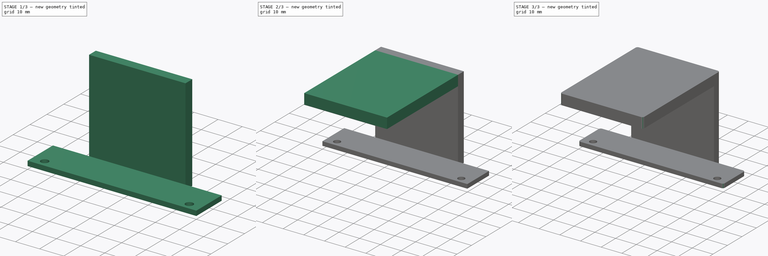
[diagram: build sequence overview — one tinted view per stage of 3, left to right]
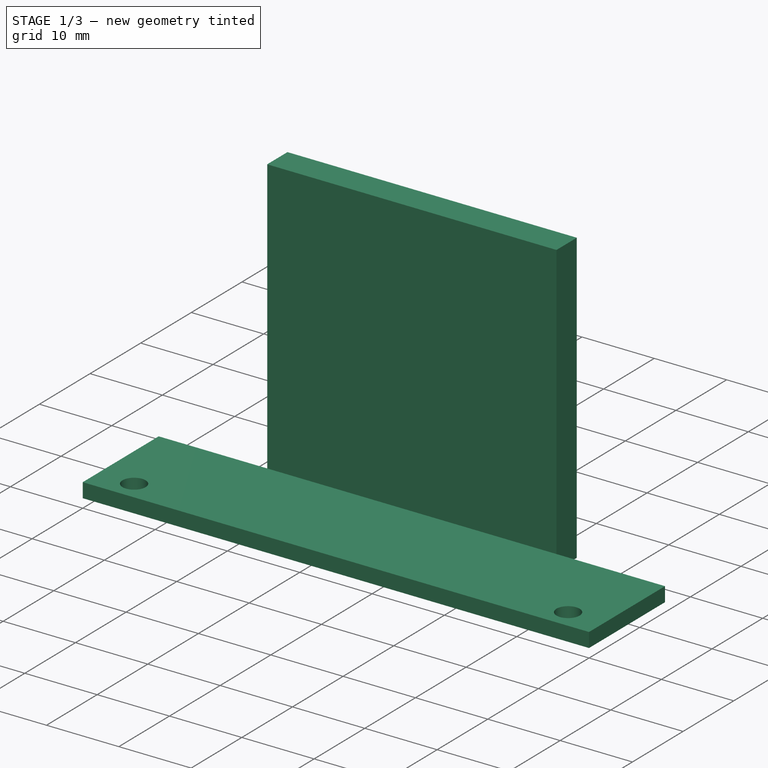
[diagram: stage 1 of 3 — iso view after this stage's code; geometry added in this stage tinted green]
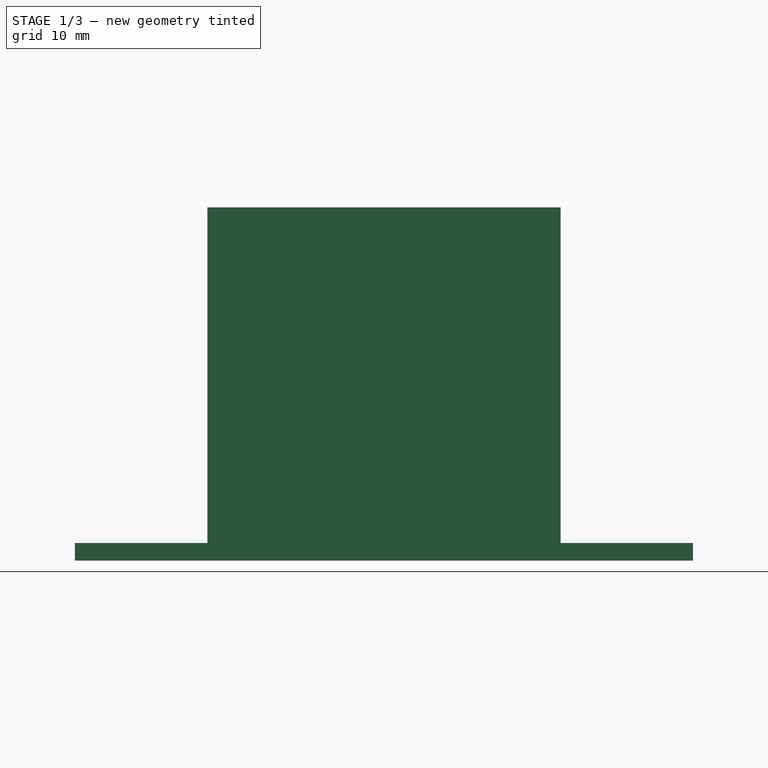
[diagram: stage 1 of 3 — front view after this stage's code; geometry added in this stage tinted green]
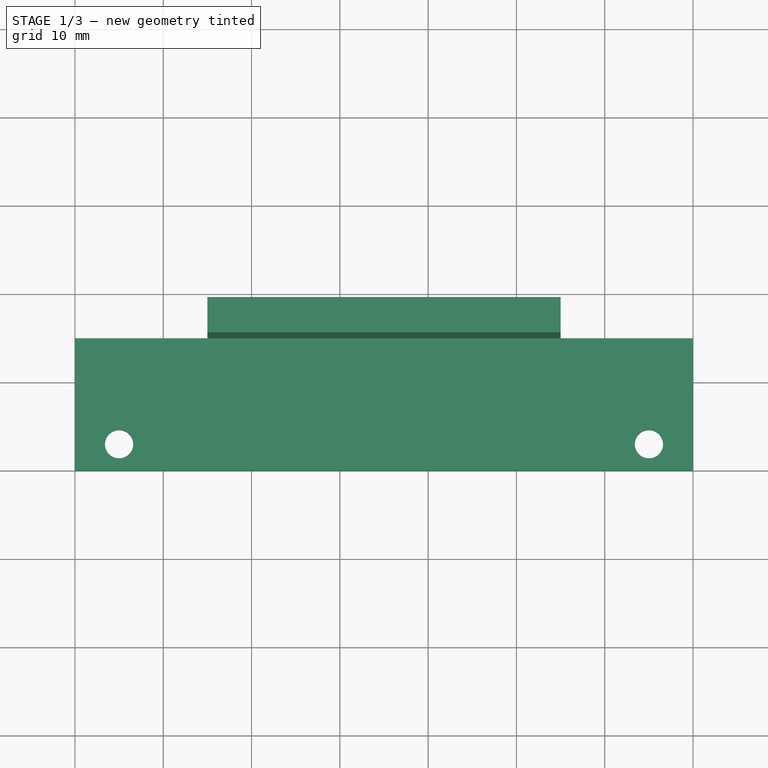
[diagram: stage 1 of 3 — top view after this stage's code; geometry added in this stage tinted green]
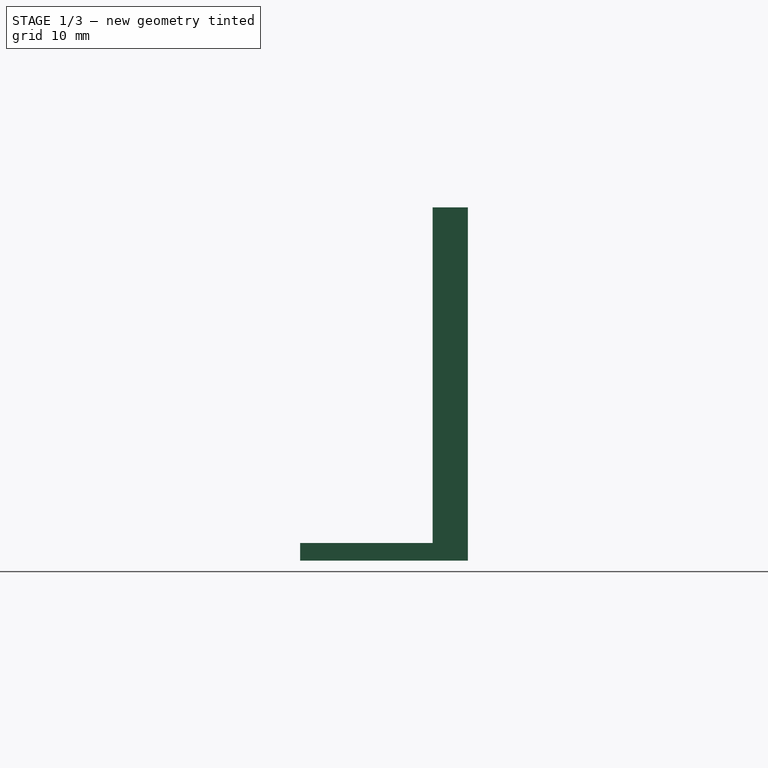
[diagram: stage 1 of 3 — right view after this stage's code; geometry added in this stage tinted green]
FCSTD DOCUMENT  (FreeCAD 0.19R24291 (Git))
Label: LED Mount Bottom Mount 2
License: All rights reserved
LicenseURL: http://en.wikipedia.org/wiki/All_rights_reserved
objects: Sketcher::SketchObject×6, PartDesign::Pad×3, PartDesign::Pocket×3, PartDesign::Fillet×1, PartDesign::Body×1
note: 21 computed .brp shape members not serialized (recipe doc carries the construction recipe); baked Part::Feature solids carry a one-line shape summary decoded from their .brp

FEATURE [Sketcher::SketchObject] Sketch
  FullyConstrained = true
  MapMode = 5
  Support = -> [XY_Plane]
  sketch-geometry (7):
    g0: LineSegment StartX=0 StartY=0 StartZ=0 EndX=70 EndY=0 EndZ=0
    g1: LineSegment StartX=70 StartY=0 StartZ=0 EndX=70 EndY=15 EndZ=0
    g2: LineSegment StartX=70 StartY=15 StartZ=0 EndX=0 EndY=15 EndZ=0
    g3: LineSegment StartX=0 StartY=15 StartZ=0 EndX=0 EndY=0 EndZ=0
    g4: Circle CenterX=5 CenterY=3 CenterZ=0 NormalX=0 NormalY=0 NormalZ=1 AngleXU=0 Radius=1.6
    g5: Circle CenterX=65 CenterY=3 CenterZ=0 NormalX=0 NormalY=0 NormalZ=1 AngleXU=0 Radius=1.6
    g6: LineSegment StartX=5 StartY=3 StartZ=0 EndX=65 EndY=3 EndZ=0
  constraints (19):
    c: Coincident(g0,g1)
    c: Coincident(g1,g2)
    c: Coincident(g2,g3)
    c: Coincident(g3,g0)
    c: Horizontal(g0)
    c: Horizontal(g2)
    c: Vertical(g1)
    c: Vertical(g3)
    c: Coincident(g0,g-1)
    c: DistanceX(g2,g2) = 70
    c: DistanceY(g1,g1) = 15
    c: Diameter(g4) = 3.2
    c: Equal(g4,g5)
    c: Coincident(g6,g4)
    c: Coincident(g6,g5)
    c: Horizontal(g6)
    c: DistanceX(g6,g6) = 60
    c: DistanceX(g2,g4) = 5
    c: DistanceY(g0,g4) = 3
FEATURE [PartDesign::Pad] Pad  label="Base Mount"
  Direction = (1,1,1)
  Length = 2
  Length2 = 100
  Profile = -> Sketch
  Type = 0
FEATURE [Sketcher::SketchObject] Sketch001
  ExternalGeometry = -> [Pad]
  FullyConstrained = true
  MapMode = 5
  Placement = pos=(0,15,0) rot=(0,0.707107,0.707107;3.14159rad)
  Support = -> [Pad]
  sketch-geometry (4):
    g0: LineSegment StartX=-55 StartY=0 StartZ=0 EndX=-15 EndY=0 EndZ=0
    g1: LineSegment StartX=-15 StartY=0 StartZ=0 EndX=-15 EndY=40 EndZ=0
    g2: LineSegment StartX=-15 StartY=40 StartZ=0 EndX=-55 EndY=40 EndZ=0
    g3: LineSegment StartX=-55 StartY=40 StartZ=0 EndX=-55 EndY=0 EndZ=0
  constraints (12):
    c: Coincident(g0,g1)
    c: Coincident(g1,g2)
    c: Coincident(g2,g3)
    c: Coincident(g3,g0)
    c: Horizontal(g0)
    c: Horizontal(g2)
    c: Vertical(g1)
    c: Vertical(g3)
    c: PointOnObject(g0,g-1)
    c: DistanceX(g2,g2) = 40
    c: DistanceX(g0,g-1) = 15
    c: DistanceY(g1,g1) = 40
FEATURE [PartDesign::Pad] Pad001  label="Wall"
  BaseFeature = -> Pad
  Direction = (1,1,1)
  Length = 4
  Length2 = 100
  Profile = -> Sketch001
  Type = 0
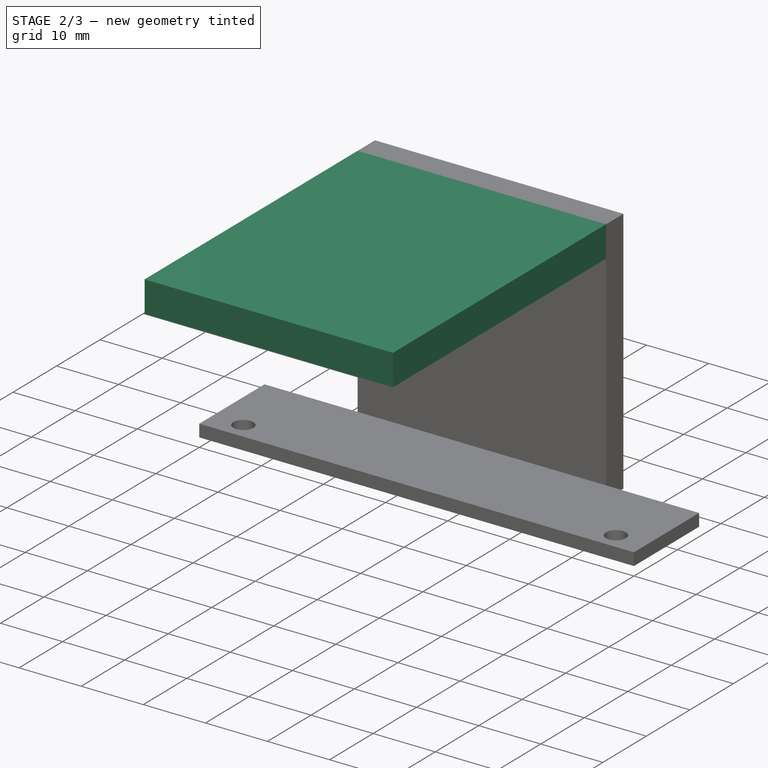
[diagram: stage 2 of 3 — iso view after this stage's code; geometry added in this stage tinted green]
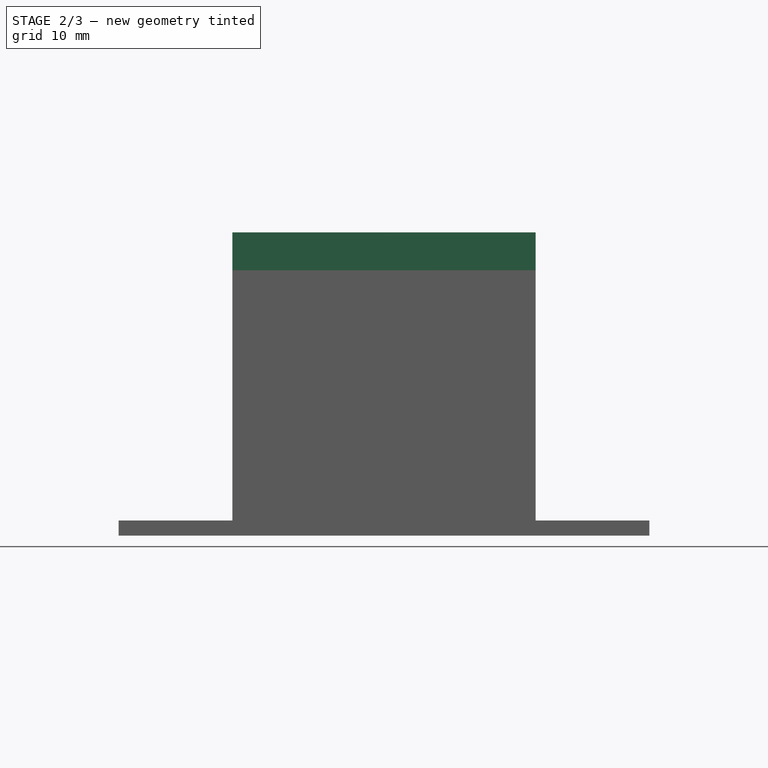
[diagram: stage 2 of 3 — front view after this stage's code; geometry added in this stage tinted green]
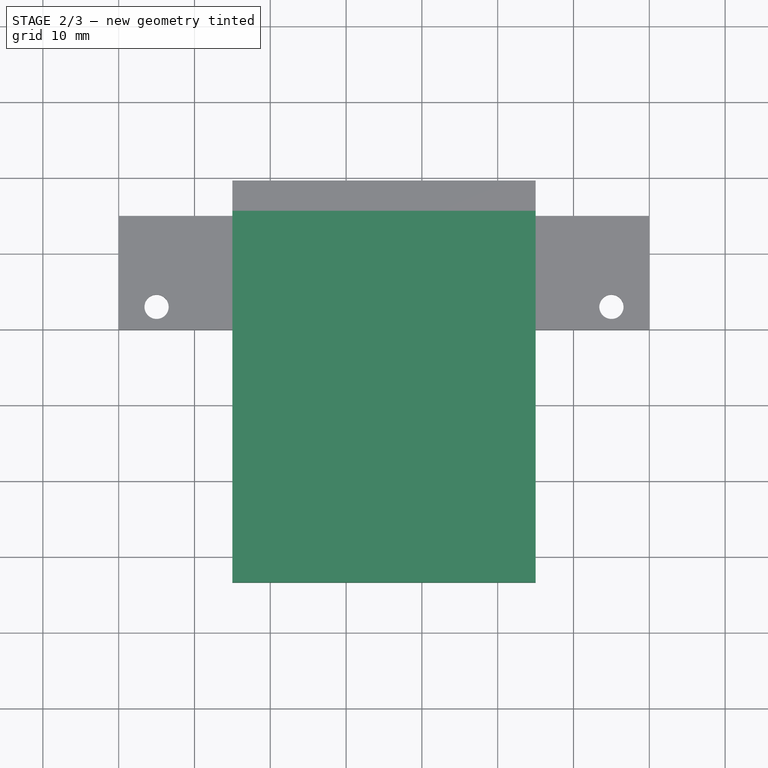
[diagram: stage 2 of 3 — top view after this stage's code; geometry added in this stage tinted green]
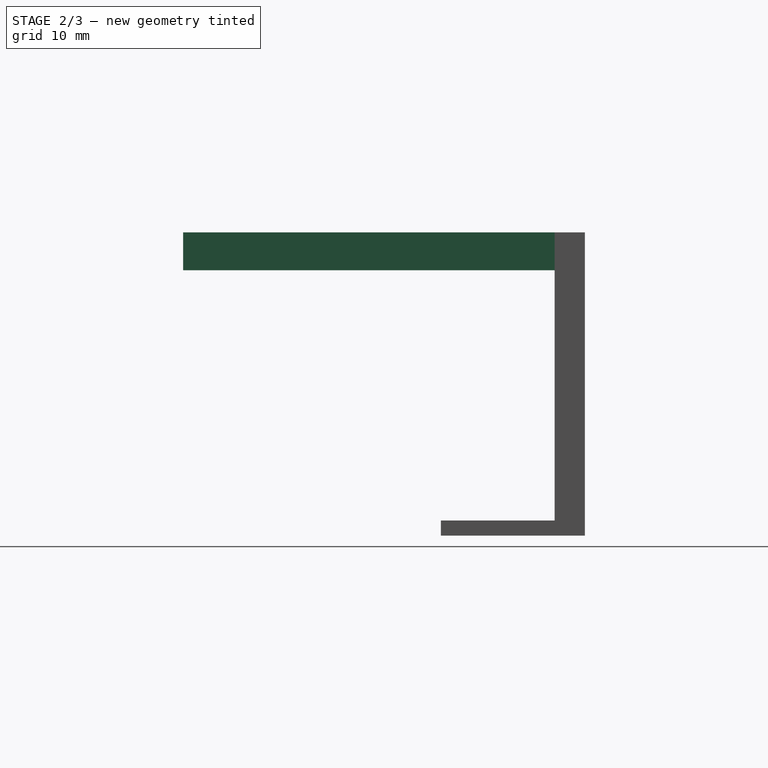
[diagram: stage 2 of 3 — right view after this stage's code; geometry added in this stage tinted green]
FEATURE [Sketcher::SketchObject] Sketch002
  ExternalGeometry = -> [Pad001]
  FullyConstrained = true
  MapMode = 5
  Placement = pos=(0,8.9e-15,40) rot=(0,0,1;0rad)
  Support = -> [Pad001]
  sketch-geometry (4):
    g0: LineSegment StartX=15 StartY=15 StartZ=0 EndX=55 EndY=15 EndZ=0
    g1: LineSegment StartX=55 StartY=15 StartZ=0 EndX=55 EndY=-34 EndZ=0
    g2: LineSegment StartX=55 StartY=-34 StartZ=0 EndX=15 EndY=-34 EndZ=0
    g3: LineSegment StartX=15 StartY=-34 StartZ=0 EndX=15 EndY=15 EndZ=0
  constraints (10):
    c: Coincident(g0,g1)
    c: Coincident(g1,g2)
    c: Coincident(g2,g3)
    c: Coincident(g3,g0)
    c: Horizontal(g2)
    c: Vertical(g1)
    c: Vertical(g3)
    c: Coincident(g0,g-3)
    c: Coincident(g0,g-3)
    c: DistanceY(g3,g3) = 49
FEATURE [PartDesign::Pad] Pad002  label="Top"
  BaseFeature = -> Pad001
  Direction = (1,1,1)
  Length = 5
  Length2 = 100
  Profile = -> Sketch002
  Reversed = true
  Type = 0
FEATURE [Sketcher::SketchObject] Sketch003
  ExternalGeometry = -> [Pad002]
  FullyConstrained = true
  MapMode = 5
  Placement = pos=(0,5.1e-15,35) rot=(1,0,0;3.14159rad)
  Support = -> [Pad002]
  sketch-geometry (8):
    g0: LineSegment StartX=19.75 StartY=32 StartZ=0 EndX=50.25 EndY=32 EndZ=0
    g1: LineSegment StartX=50.25 StartY=32 StartZ=0 EndX=50.25 EndY=1.5 EndZ=0
    g2: LineSegment StartX=50.25 StartY=1.5 StartZ=0 EndX=19.75 EndY=1.5 EndZ=0
    g3: LineSegment StartX=19.75 StartY=32 StartZ=0 EndX=19.75 EndY=23 EndZ=0
    g4: LineSegment StartX=19.75 StartY=1.5 StartZ=0 EndX=19.75 EndY=10.5 EndZ=0
    g5: LineSegment StartX=19.75 StartY=23 StartZ=0 EndX=15 EndY=23 EndZ=0
    g6: LineSegment StartX=15 StartY=23 StartZ=0 EndX=15 EndY=10.5 EndZ=0
    g7: LineSegment StartX=15 StartY=10.5 StartZ=0 EndX=19.75 EndY=10.5 EndZ=0
  constraints (24):
    c: Coincident(g0,g1)
    c: Coincident(g1,g2)
    c: Horizontal(g0)
    c: Horizontal(g2)
    c: Vertical(g1)
    c: DistanceX(g-4,g0) = 4.75
    c: DistanceX(g0,g0) = 30.5
    c: DistanceY(g0,g-4) = 2
    c: DistanceY(g2,g0) = 30.5
    c: Coincident(g3,g0)
    c: Vertical(g3)
    c: Coincident(g4,g2)
    c: Vertical(g4)
    c: Coincident(g5,g3)
    c: PointOnObject(g5,g-4)
    c: Coincident(g6,g5)
    c: PointOnObject(g6,g-4)
    c: Coincident(g7,g6)
    c: Coincident(g7,g4)
    c: Horizontal(g7)
    c: Horizontal(g5)
    c: DistanceY(g3,g3) = 9
    c: DistanceY(g4,g4) = 9
    c: Equal(g7,g5)
FEATURE [PartDesign::Pocket] Pocket  label="LED Recess"
  BaseFeature = -> Pad002
  Length = 2
  Length2 = 100
  Profile = -> Sketch003
  Type = 0
FEATURE [Sketcher::SketchObject] Sketch004
  ExternalGeometry = -> [Pocket]
  FullyConstrained = true
  MapMode = 5
  Placement = pos=(-2e-15,8.2e-15,37) rot=(1,0,0;3.14159rad)
  Support = -> [Pocket]
  sketch-geometry (4):
    g0: LineSegment StartX=15 StartY=10.5 StartZ=0 EndX=24.75 EndY=10.5 EndZ=0
    g1: LineSegment StartX=24.75 StartY=10.5 StartZ=0 EndX=24.75 EndY=23 EndZ=0
    g2: LineSegment StartX=24.75 StartY=23 StartZ=0 EndX=15 EndY=23 EndZ=0
    g3: LineSegment StartX=15 StartY=23 StartZ=0 EndX=15 EndY=10.5 EndZ=0
  constraints (10):
    c: Coincident(g0,g1)
    c: Coincident(g1,g2)
    c: Coincident(g2,g3)
    c: Coincident(g3,g0)
    c: Horizontal(g0)
    c: Horizontal(g2)
    c: Vertical(g1)
    c: Coincident(g0,g-5)
    c: Coincident(g2,g-5)
    c: DistanceX(g-3,g1) = 5
FEATURE [PartDesign::Pocket] Pocket001  label="Wire Recess"
  BaseFeature = -> Pocket
  Length = 1.5
  Length2 = 100
  Profile = -> Sketch004
  Type = 0
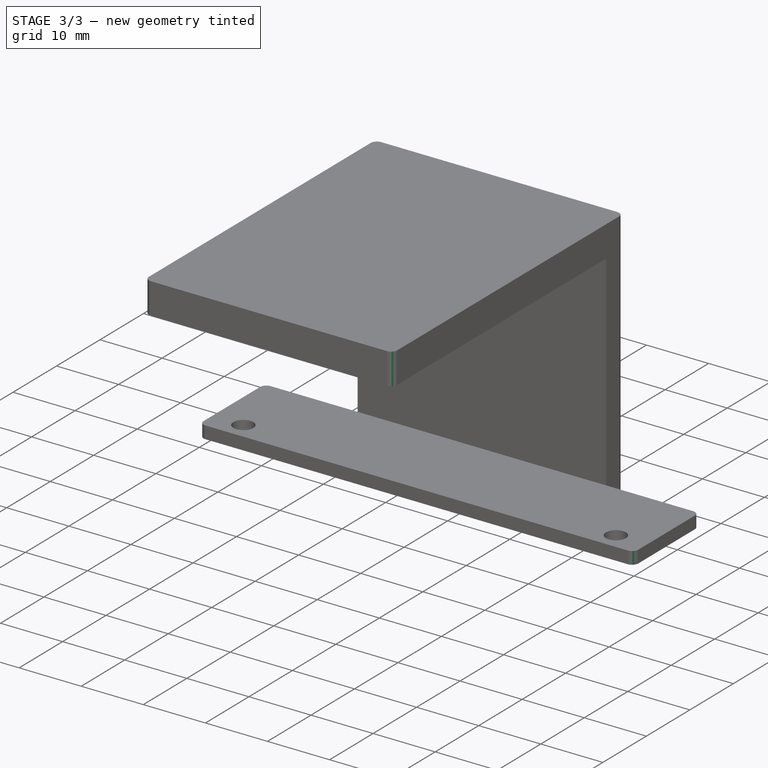
[diagram: stage 3 of 3 — iso view after this stage's code; geometry added in this stage tinted green]
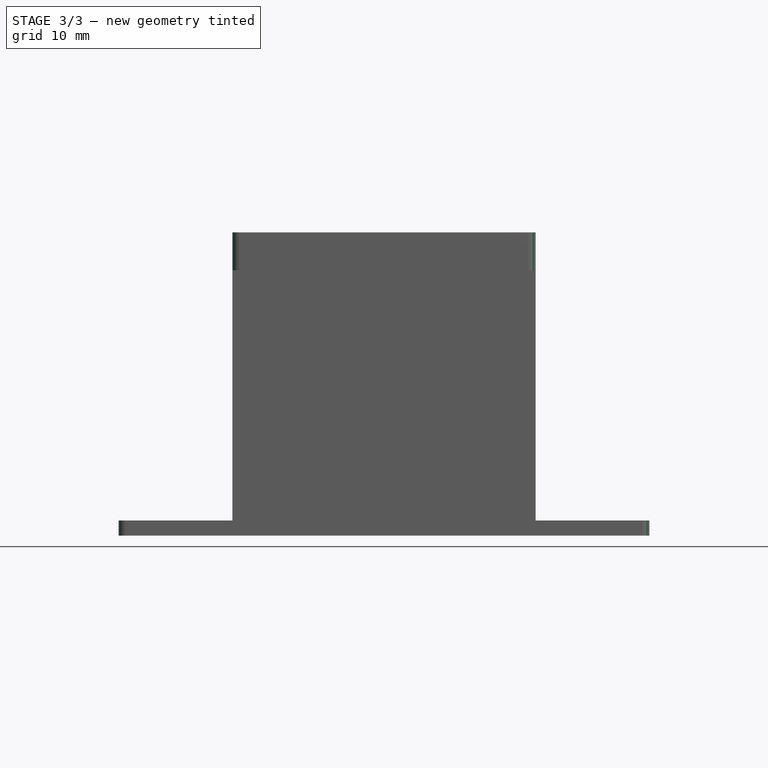
[diagram: stage 3 of 3 — front view after this stage's code; geometry added in this stage tinted green]
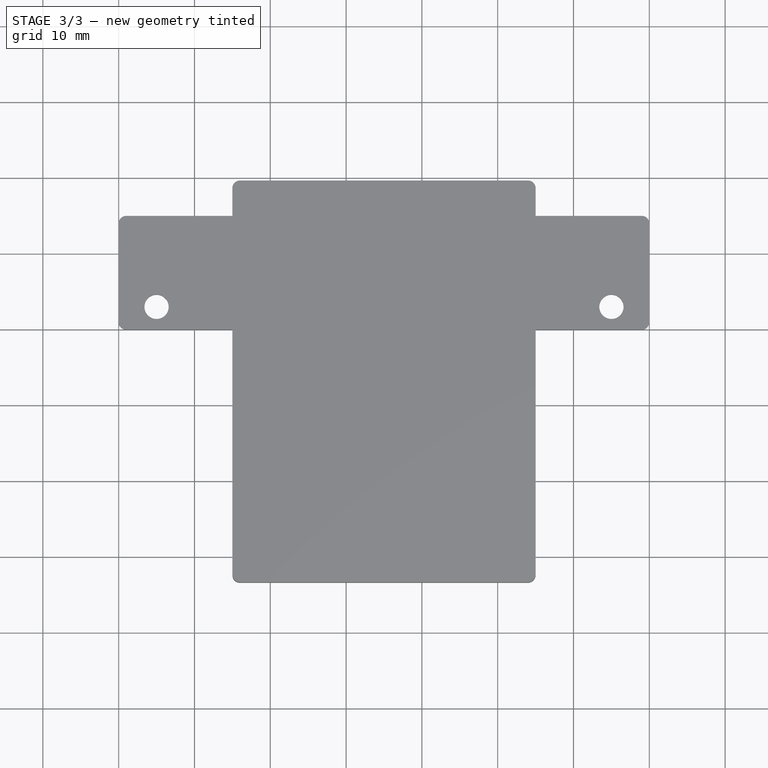
[diagram: stage 3 of 3 — top view after this stage's code; geometry added in this stage tinted green]
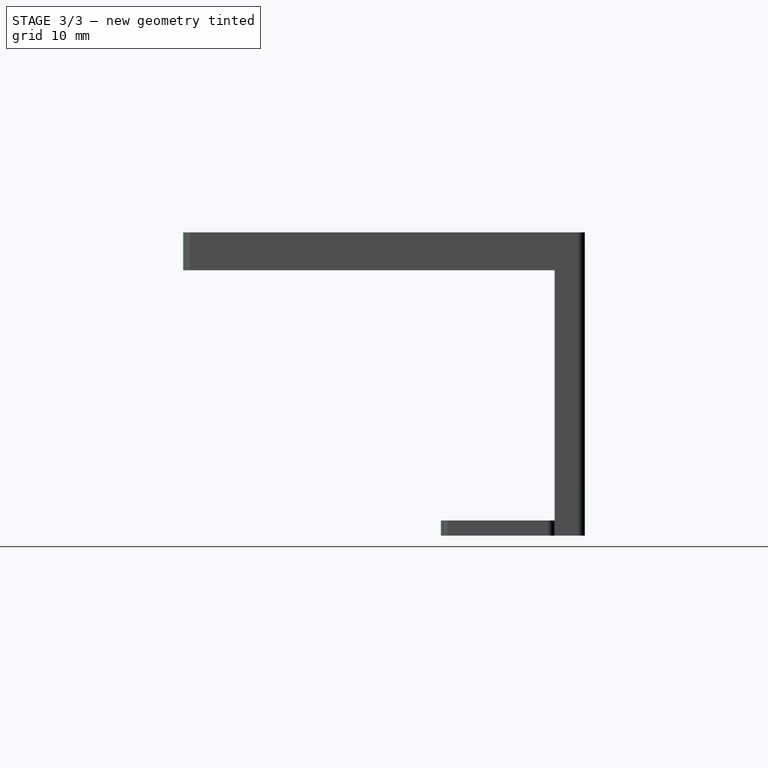
[diagram: stage 3 of 3 — right view after this stage's code; geometry added in this stage tinted green]
FEATURE [Sketcher::SketchObject] Sketch005
  ExternalGeometry = -> [Pocket001]
  FullyConstrained = true
  MapMode = 5
  Placement = pos=(-2e-15,8.2e-15,37) rot=(1,0,0;3.14159rad)
  Support = -> [Pocket001]
  sketch-geometry (8):
    g0: Circle CenterX=27.25 CenterY=24.75 CenterZ=0 NormalX=0 NormalY=0 NormalZ=1 AngleXU=0 Radius=0.925
    g1: Circle CenterX=42.25 CenterY=24.75 CenterZ=0 NormalX=0 NormalY=0 NormalZ=1 AngleXU=0 Radius=0.925
    g2: Circle CenterX=27.25 CenterY=8.75 CenterZ=0 NormalX=0 NormalY=0 NormalZ=1 AngleXU=0 Radius=0.925
    g3: Circle CenterX=42.25 CenterY=8.75 CenterZ=0 NormalX=0 NormalY=0 NormalZ=1 AngleXU=0 Radius=0.925
    g4: LineSegment StartX=27.25 StartY=24.75 StartZ=0 EndX=27.25 EndY=8.75 EndZ=0
    g5: LineSegment StartX=27.25 StartY=8.75 StartZ=0 EndX=42.25 EndY=8.75 EndZ=0
    g6: LineSegment StartX=42.25 StartY=8.75 StartZ=0 EndX=42.25 EndY=24.75 EndZ=0
    g7: LineSegment StartX=42.25 StartY=24.75 StartZ=0 EndX=27.25 EndY=24.75 EndZ=0
  constraints (20):
    c: Coincident(g4,g0)
    c: Coincident(g4,g2)
    c: Coincident(g5,g2)
    c: Coincident(g5,g3)
    c: Horizontal(g5)
    c: Coincident(g6,g3)
    c: Coincident(g6,g1)
    c: Coincident(g7,g0)
    c: Horizontal(g7)
    c: Vertical(g4)
    c: Vertical(g6)
    c: Coincident(g7,g1)
    c: Equal(g1,g0)
    c: Equal(g0,g2)
    c: Equal(g2,g3)
    c: Diameter(g0) = 1.85
    c: DistanceX(g-3,g2) = 7.5
    c: DistanceX(g5,g5) = 15
    c: DistanceY(g-4,g3) = 7.25
    c: DistanceY(g6,g6) = 16
FEATURE [PartDesign::Pocket] Pocket002  label="Mount Holes"
  BaseFeature = -> Pocket001
  Length = 0
  Length2 = 100
  Offset = -0.75
  Profile = -> Sketch005
  Type = 3
  UpToFace = -> Pocket001 [Face27]
FEATURE [PartDesign::Fillet] Fillet
  Base = -> Pocket002 [Edge2,Edge8,Edge1,Edge5,Edge56,Edge57,Edge33,Edge36]
  BaseFeature = -> Pocket002
  Radius = 1
  SupportTransform = false
FEATURE [PartDesign::Body] Body
  Group = -> [Sketch,Pad,Sketch001,Pad001,Sketch002,Pad002,Sketch003,Pocket,Sketch004,Pocket001,Sketch005,Pocket002,Fillet]
  Origin = -> Origin
  Tip = -> Fillet
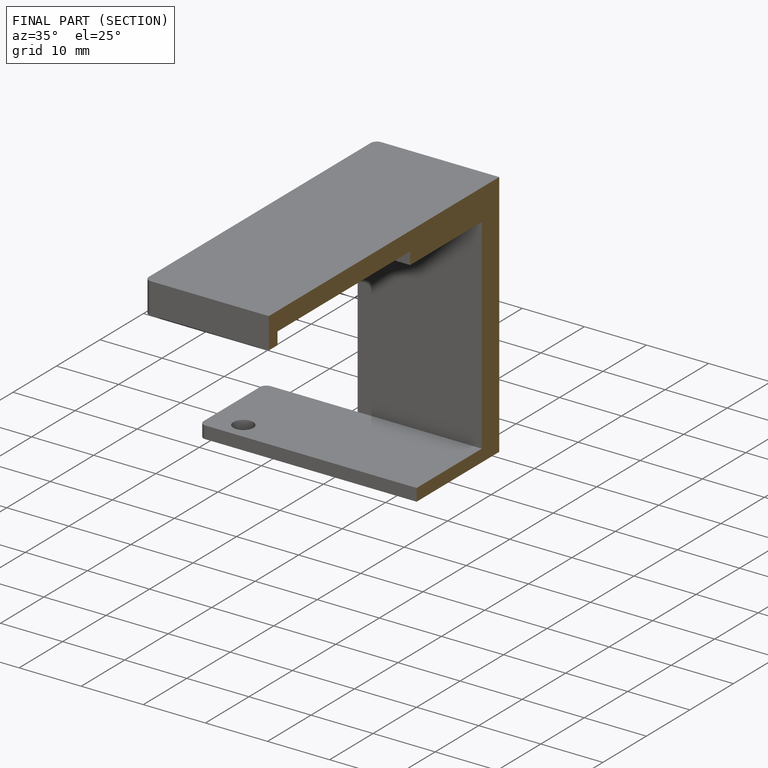
[diagram: finished part — half-section view (interior)]
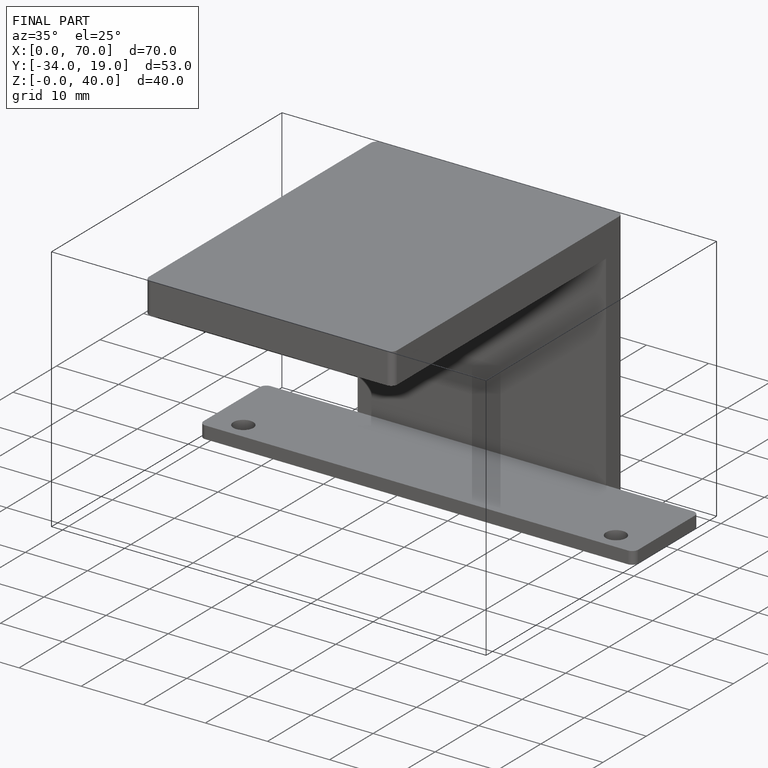
[diagram: finished part — iso view with bounding-box wireframe]
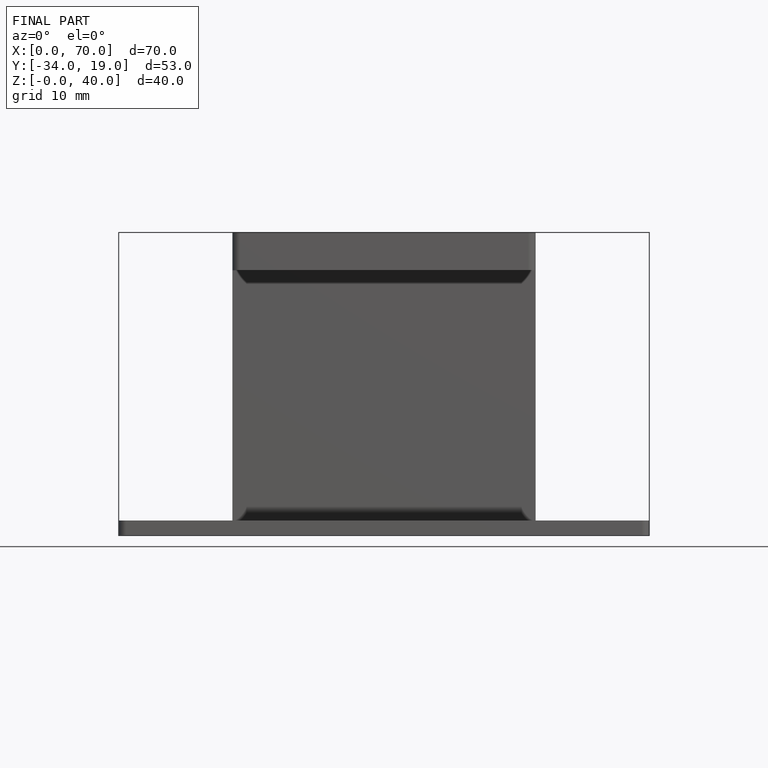
[diagram: finished part — front view with bounding-box wireframe]
